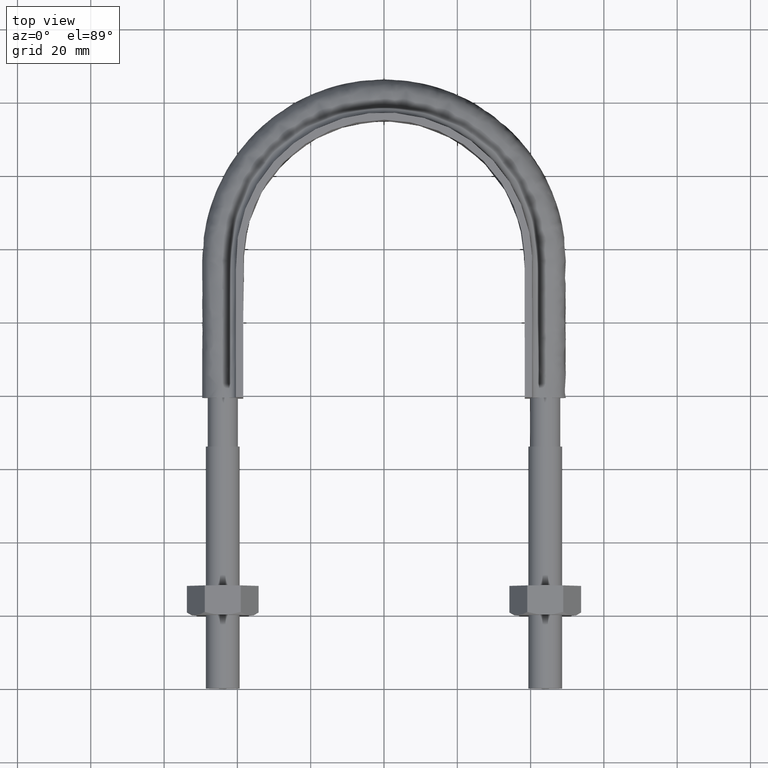
[diagram: clean part render]
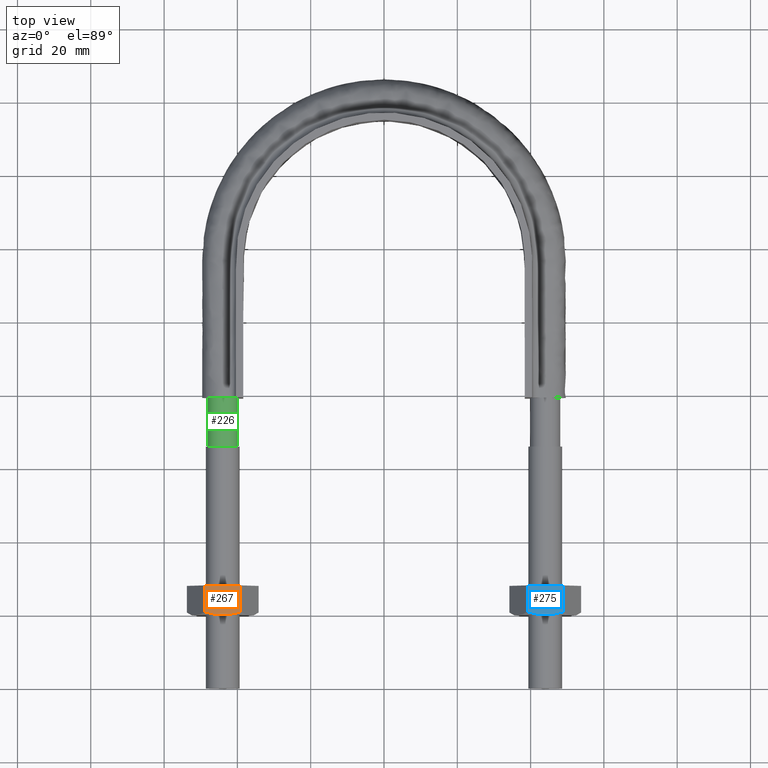
[diagram: same view with three faces highlighted in distinct colors, each labeled with its STEP entity id]
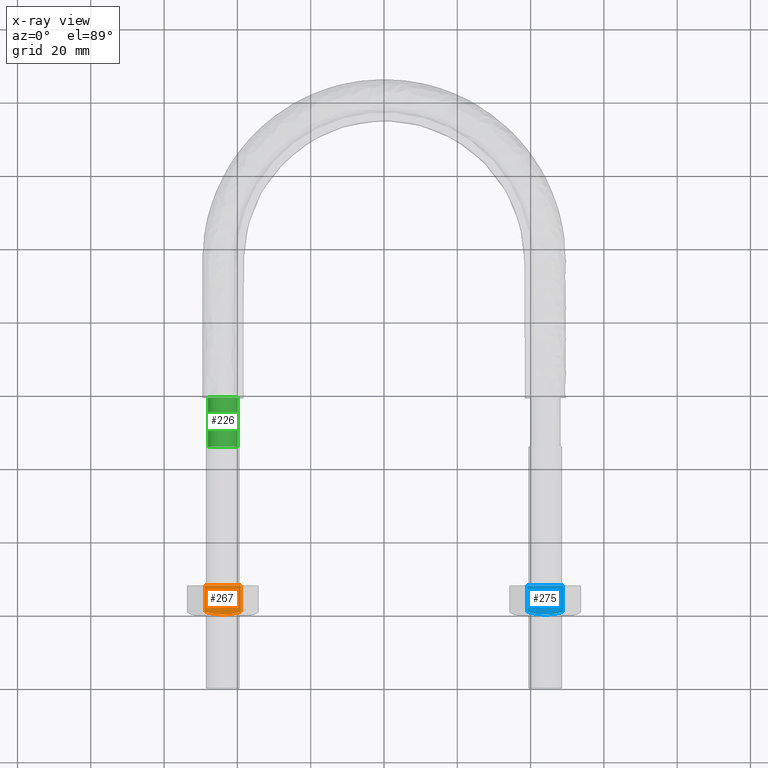
[diagram: x-ray of the same camera — body ghosted, the three highlighted faces saturated]
A machine part, top view with three faces highlighted in distinct colors.
The next image is the same camera in x-ray (body ghosted, the three faces saturated) — at least one of them is partly hidden behind the body in this view.
Their STEP definitions:

[orange] entity #267 — the highlighted planar face has unit normal (0, 0, -1).
#267 = ADVANCED_FACE( '', ( #406 ), #407, .F. );
#406 = FACE_OUTER_BOUND( '', #1403, .T. );
#407 = PLANE( '', #1404 );
#1403 = EDGE_LOOP( '', ( #1795, #1796, #1797, #1798, #1799 ) );
#1404 = AXIS2_PLACEMENT_3D( '', #1800, #1801, #1802 );
#1795 = ORIENTED_EDGE( '', *, *, #2058, .F. );
#1796 = ORIENTED_EDGE( '', *, *, #2091, .F. );
#1797 = ORIENTED_EDGE( '', *, *, #2098, .F. );
#1798 = ORIENTED_EDGE( '', *, *, #2078, .F. );
#1799 = ORIENTED_EDGE( '', *, *, #2065, .F. );
#1800 = CARTESIAN_POINT( '', ( -48.9074772881118, 28.0000000000000, 8.50000000000000 ) );
#1801 = DIRECTION( '', ( 5.55111512312578E-017, 6.12303176911189E-017, -1.00000000000000 ) );
#1802 = DIRECTION( '', ( -1.00000000000000, 0.000000000000000, -5.55111512312578E-017 ) );
#2058 = EDGE_CURVE( '', #2246, #2248, #2249, .T. );
#2065 = EDGE_CURVE( '', #2248, #2260, #2261, .T. );
#2078 = EDGE_CURVE( '', #2260, #2282, #2283, .T. );
#2091 = EDGE_CURVE( '', #2302, #2246, #2304, .T. );
#2098 = EDGE_CURVE( '', #2282, #2302, #2313, .F. );
#2246 = VERTEX_POINT( '', #2765 );
#2248 = VERTEX_POINT( '', #2767 );
#2249 = B_SPLINE_CURVE_WITH_KNOTS( '', 3, ( #2768, #2769, #2770, #2771, #2772, #2773 ), .UNSPECIFIED., .F., .F., ( 4, 2, 4 ), ( 0.000000000000000, 0.00246745482903606, 0.00493490965807212 ), .UNSPECIFIED. );
#2260 = VERTEX_POINT( '', #2797 );
#2261 = LINE( '', #2798, #2799 );
#2282 = VERTEX_POINT( '', #2831 );
#2283 = LINE( '', #2832, #2833 );
#2302 = VERTEX_POINT( '', #2870 );
#2304 = B_SPLINE_CURVE_WITH_KNOTS( '', 3, ( #2872, #2873, #2874, #2875, #2876, #2877 ), .UNSPECIFIED., .F., .F., ( 4, 2, 4 ), ( 6.93889390390723E-018, 0.00246745482903606, 0.00493490965807212 ), .UNSPECIFIED. );
#2313 = LINE( '', #2898, #2899 );
#2765 = CARTESIAN_POINT( '', ( -44.0000000000000, 20.0000000000000, 8.50000000000000 ) );
#2767 = CARTESIAN_POINT( '', ( -48.8774993593029, 20.7505553499465, 8.50000000000000 ) );
#2768 = CARTESIAN_POINT( '', ( -44.0000000000000, 20.0000000000000, 8.50000000000000 ) );
#2769 = CARTESIAN_POINT( '', ( -44.8321659501907, 20.0000000000000, 8.50000000000000 ) );
#2770 = CARTESIAN_POINT( '', ( -45.6533062476857, 20.0716504305290, 8.50000000000000 ) );
#2771 = CARTESIAN_POINT( '', ( -47.2774431756629, 20.3328582843707, 8.50000000000000 ) );
#2772 = CARTESIAN_POINT( '', ( -48.0805717066773, 20.5215585493657, 8.50000000000000 ) );
#2773 = CARTESIAN_POINT( '', ( -48.8774993593029, 20.7505553499465, 8.50000000000000 ) );
#2797 = CARTESIAN_POINT( '', ( -48.8774993593029, 28.0000000000000, 8.50000000000000 ) );
#2798 = CARTESIAN_POINT( '', ( -48.8774993593029, 28.0000000000000, 8.50000000000000 ) );
#2799 = VECTOR( '', #3157, 1000.00000000000 );
#2831 = CARTESIAN_POINT( '', ( -39.1225006406971, 28.0000000000000, 8.50000000000000 ) );
#2832 = CARTESIAN_POINT( '', ( -39.1000000000000, 28.0000000000000, 8.50000000000000 ) );
#2833 = VECTOR( '', #3179, 1000.00000000000 );
#2870 = CARTESIAN_POINT( '', ( -39.1225006406971, 20.7505553499465, 8.50000000000000 ) );
#2872 = CARTESIAN_POINT( '', ( -39.1225006406971, 20.7505553499465, 8.50000000000000 ) );
#2873 = CARTESIAN_POINT( '', ( -39.9194282933228, 20.5215585493657, 8.50000000000000 ) );
#2874 = CARTESIAN_POINT( '', ( -40.7225568243372, 20.3328582843707, 8.50000000000000 ) );
#2875 = CARTESIAN_POINT( '', ( -42.3466937523143, 20.0716504305290, 8.50000000000000 ) );
#2876 = CARTESIAN_POINT( '', ( -43.1678340498093, 20.0000000000000, 8.50000000000000 ) );
#2877 = CARTESIAN_POINT( '', ( -44.0000000000000, 20.0000000000000, 8.50000000000000 ) );
#2898 = CARTESIAN_POINT( '', ( -39.1225006406971, 28.0000000000000, 8.50000000000000 ) );
#2899 = VECTOR( '', #3209, 1000.00000000000 );
#3157 = DIRECTION( '', ( 2.44921270764475E-016, 1.00000000000000, 6.12303176911189E-017 ) );
#3179 = DIRECTION( '', ( 1.00000000000000, -2.44921270764475E-016, 5.55111512312578E-017 ) );
#3209 = DIRECTION( '', ( 2.44921270764475E-016, 1.00000000000000, 6.12303176911189E-017 ) );

[blue] entity #275 — the highlighted planar face has unit normal (0, 0, -1).
#275 = ADVANCED_FACE( '', ( #424 ), #425, .F. );
#424 = FACE_OUTER_BOUND( '', #1421, .T. );
#425 = PLANE( '', #1422 );
#1421 = EDGE_LOOP( '', ( #1849, #1850, #1851, #1852, #1853 ) );
#1422 = AXIS2_PLACEMENT_3D( '', #1854, #1855, #1856 );
#1849 = ORIENTED_EDGE( '', *, *, #2110, .F. );
#1850 = ORIENTED_EDGE( '', *, *, #2113, .F. );
#1851 = ORIENTED_EDGE( '', *, *, #2114, .F. );
#1852 = ORIENTED_EDGE( '', *, *, #2115, .F. );
#1853 = ORIENTED_EDGE( '', *, *, #2116, .F. );
#1854 = CARTESIAN_POINT( '', ( 39.0925227118882, 28.0000000000000, 8.50000000000000 ) );
#1855 = DIRECTION( '', ( 5.55111512312578E-017, 6.12303176911189E-017, -1.00000000000000 ) );
#1856 = DIRECTION( '', ( -1.00000000000000, 0.000000000000000, -5.55111512312578E-017 ) );
#2110 = EDGE_CURVE( '', #2332, #2334, #2335, .T. );
#2113 = EDGE_CURVE( '', #2339, #2332, #2340, .T. );
#2114 = EDGE_CURVE( '', #2341, #2339, #2342, .F. );
#2115 = EDGE_CURVE( '', #2343, #2341, #2344, .T. );
#2116 = EDGE_CURVE( '', #2334, #2343, #2345, .T. );
#2332 = VERTEX_POINT( '', #2929 );
#2334 = VERTEX_POINT( '', #2931 );
#2335 = B_SPLINE_CURVE_WITH_KNOTS( '', 3, ( #2932, #2933, #2934, #2935, #2936, #2937 ), .UNSPECIFIED., .F., .F., ( 4, 2, 4 ), ( 0.000000000000000, 0.00246745482903606, 0.00493490965807211 ), .UNSPECIFIED. );
#2339 = VERTEX_POINT( '', #2946 );
#2340 = B_SPLINE_CURVE_WITH_KNOTS( '', 3, ( #2947, #2948, #2949, #2950, #2951, #2952 ), .UNSPECIFIED., .F., .F., ( 4, 2, 4 ), ( 6.93889390390723E-018, 0.00246745482903607, 0.00493490965807212 ), .UNSPECIFIED. );
#2341 = VERTEX_POINT( '', #2953 );
#2342 = LINE( '', #2954, #2955 );
#2343 = VERTEX_POINT( '', #2956 );
#2344 = LINE( '', #2957, #2958 );
#2345 = LINE( '', #2959, #2960 );
#2929 = CARTESIAN_POINT( '', ( 44.0000000000000, 20.0000000000000, 8.50000000000000 ) );
#2931 = CARTESIAN_POINT( '', ( 39.1225006406971, 20.7505553499465, 8.50000000000000 ) );
#2932 = CARTESIAN_POINT( '', ( 44.0000000000000, 20.0000000000000, 8.50000000000000 ) );
#2933 = CARTESIAN_POINT( '', ( 43.1678340498093, 20.0000000000000, 8.50000000000000 ) );
#2934 = CARTESIAN_POINT( '', ( 42.3466937523143, 20.0716504305290, 8.50000000000000 ) );
#2935 = CARTESIAN_POINT( '', ( 40.7225568243371, 20.3328582843707, 8.50000000000000 ) );
#2936 = CARTESIAN_POINT( '', ( 39.9194282933227, 20.5215585493657, 8.50000000000000 ) );
#2937 = CARTESIAN_POINT( '', ( 39.1225006406971, 20.7505553499465, 8.50000000000000 ) );
#2946 = CARTESIAN_POINT( '', ( 48.8774993593029, 20.7505553499465, 8.50000000000000 ) );
#2947 = CARTESIAN_POINT( '', ( 48.8774993593029, 20.7505553499465, 8.50000000000000 ) );
#2948 = CARTESIAN_POINT( '', ( 48.0805717066773, 20.5215585493657, 8.50000000000000 ) );
#2949 = CARTESIAN_POINT( '', ( 47.2774431756629, 20.3328582843707, 8.50000000000000 ) );
#2950 = CARTESIAN_POINT( '', ( 45.6533062476857, 20.0716504305290, 8.50000000000000 ) );
#2951 = CARTESIAN_POINT( '', ( 44.8321659501907, 20.0000000000000, 8.50000000000000 ) );
#2952 = CARTESIAN_POINT( '', ( 44.0000000000000, 20.0000000000000, 8.50000000000000 ) );
#2953 = CARTESIAN_POINT( '', ( 48.8774993593029, 28.0000000000000, 8.50000000000000 ) );
#2954 = CARTESIAN_POINT( '', ( 48.8774993593029, 28.0000000000000, 8.50000000000000 ) );
#2955 = VECTOR( '', #3238, 1000.00000000000 );
#2956 = CARTESIAN_POINT( '', ( 39.1225006406971, 28.0000000000000, 8.50000000000000 ) );
#2957 = CARTESIAN_POINT( '', ( 48.9000000000000, 28.0000000000000, 8.50000000000000 ) );
#2958 = VECTOR( '', #3239, 1000.00000000000 );
#2959 = CARTESIAN_POINT( '', ( 39.1225006406971, 28.0000000000000, 8.50000000000000 ) );
#2960 = VECTOR( '', #3240, 1000.00000000000 );
#3238 = DIRECTION( '', ( 2.44921270764475E-016, 1.00000000000000, 6.12303176911189E-017 ) );
#3239 = DIRECTION( '', ( 1.00000000000000, -2.44921270764475E-016, 5.55111512312578E-017 ) );
#3240 = DIRECTION( '', ( 2.44921270764475E-016, 1.00000000000000, 6.12303176911189E-017 ) );

[green] entity #226 — the highlighted cylindrical surface (bore or boss wall) has radius 4.1 mm, axis along (0, 1, 0).
#226 = ADVANCED_FACE( '', ( #313, #314 ), #315, .T. );
#313 = FACE_OUTER_BOUND( '', #1161, .T. );
#314 = FACE_OUTER_BOUND( '', #1162, .T. );
#315 = CYLINDRICAL_SURFACE( '', #1163, 4.10000000000000 );
#1161 = EDGE_LOOP( '', ( #1523, #1524, #1525, #1526, #1527, #1528, #1529 ) );
#1162 = EDGE_LOOP( '', ( #1530 ) );
#1163 = AXIS2_PLACEMENT_3D( '', #1531, #1532, #1533 );
#1523 = ORIENTED_EDGE( '', *, *, #2017, .T. );
#1524 = ORIENTED_EDGE( '', *, *, #2018, .T. );
#1525 = ORIENTED_EDGE( '', *, *, #2019, .T. );
#1526 = ORIENTED_EDGE( '', *, *, #2020, .T. );
#1527 = ORIENTED_EDGE( '', *, *, #2021, .T. );
#1528 = ORIENTED_EDGE( '', *, *, #2022, .T. );
#1529 = ORIENTED_EDGE( '', *, *, #2023, .T. );
#1530 = ORIENTED_EDGE( '', *, *, #2024, .T. );
#1531 = CARTESIAN_POINT( '', ( -44.0000000000000, 79.3000000000000, 2.34512116756985E-015 ) );
#1532 = DIRECTION( '', ( 2.44921270764475E-016, 1.00000000000000, 6.12303176911189E-017 ) );
#1533 = DIRECTION( '', ( 1.00000000000000, -2.44921270764475E-016, -7.49830360911069E-033 ) );
#2017 = EDGE_CURVE( '', #2179, #2180, #2181, .T. );
#2018 = EDGE_CURVE( '', #2180, #2182, #2183, .T. );
#2019 = EDGE_CURVE( '', #2182, #2184, #2185, .T. );
#2020 = EDGE_CURVE( '', #2184, #2186, #2187, .T. );
#2021 = EDGE_CURVE( '', #2186, #2188, #2189, .T. );
#2022 = EDGE_CURVE( '', #2188, #2190, #2191, .T. );
#2023 = EDGE_CURVE( '', #2190, #2179, #2192, .T. );
#2024 = EDGE_CURVE( '', #2193, #2193, #2194, .T. );
#2179 = VERTEX_POINT( '', #2646 );
#2180 = VERTEX_POINT( '', #2647 );
#2181 = CIRCLE( '', #2648, 4.10000000000000 );
#2182 = VERTEX_POINT( '', #2649 );
#2183 = CIRCLE( '', #2650, 4.10000000000000 );
#2184 = VERTEX_POINT( '', #2651 );
#2185 = CIRCLE( '', #2652, 4.10000000000000 );
#2186 = VERTEX_POINT( '', #2653 );
#2187 = CIRCLE( '', #2654, 4.10000000000000 );
#2188 = VERTEX_POINT( '', #2655 );
#2189 = CIRCLE( '', #2656, 4.10000000000000 );
#2190 = VERTEX_POINT( '', #2657 );
#2191 = CIRCLE( '', #2658, 4.10000000000000 );
#2192 = CIRCLE( '', #2659, 4.10000000000000 );
#2193 = VERTEX_POINT( '', #2660 );
#2194 = CIRCLE( '', #2661, 4.10000000000000 );
#2646 = CARTESIAN_POINT( '', ( -39.9000000000000, 79.3000000000000, 5.26458725159965E-014 ) );
#2647 = CARTESIAN_POINT( '', ( -41.4436918124017, 79.3000000000000, 3.20550907813692 ) );
#2648 = AXIS2_PLACEMENT_3D( '', #3076, #3077, #3078 );
#2649 = CARTESIAN_POINT( '', ( -44.9123358292510, 79.3000000000000, 3.99720443993860 ) );
#2650 = AXIS2_PLACEMENT_3D( '', #3079, #3080, #3081 );
#2651 = CARTESIAN_POINT( '', ( -47.6939723583999, 79.3000000000000, 1.77892333038206 ) );
#2652 = AXIS2_PLACEMENT_3D( '', #3082, #3083, #3084 );
#2653 = CARTESIAN_POINT( '', ( -47.6939723583999, 79.3000000000000, -1.77892333038199 ) );
#2654 = AXIS2_PLACEMENT_3D( '', #3085, #3086, #3087 );
#2655 = CARTESIAN_POINT( '', ( -44.9123358292208, 79.3000000000000, -3.99720443994549 ) );
#2656 = AXIS2_PLACEMENT_3D( '', #3088, #3089, #3090 );
#2657 = CARTESIAN_POINT( '', ( -41.4436918123794, 79.3000000000000, -3.20550907811908 ) );
#2658 = AXIS2_PLACEMENT_3D( '', #3091, #3092, #3093 );
#2659 = AXIS2_PLACEMENT_3D( '', #3094, #3095, #3096 );
#2660 = CARTESIAN_POINT( '', ( -39.9000000000000, 66.0000000000000, 1.53075794227797E-015 ) );
#2661 = AXIS2_PLACEMENT_3D( '', #3097, #3098, #3099 );
#3076 = CARTESIAN_POINT( '', ( -44.0000000000000, 79.3000000000000, 2.34512116756985E-015 ) );
#3077 = DIRECTION( '', ( -2.44921270764475E-016, -1.00000000000000, -6.12303176911189E-017 ) );
#3078 = DIRECTION( '', ( 1.00000000000000, -2.44921270764475E-016, -1.04341724267742E-032 ) );
#3079 = CARTESIAN_POINT( '', ( -44.0000000000000, 79.3000000000000, 2.34512116756985E-015 ) );
#3080 = DIRECTION( '', ( -2.44921270764475E-016, -1.00000000000000, -6.12303176911189E-017 ) );
#3081 = DIRECTION( '', ( 1.00000000000000, -2.44921270764475E-016, -1.04341724267742E-032 ) );
#3082 = CARTESIAN_POINT( '', ( -44.0000000000000, 79.3000000000000, 2.34512116756985E-015 ) );
#3083 = DIRECTION( '', ( -2.44921270764475E-016, -1.00000000000000, -6.12303176911189E-017 ) );
#3084 = DIRECTION( '', ( 1.00000000000000, -2.44921270764475E-016, -1.04341724267742E-032 ) );
#3085 = CARTESIAN_POINT( '', ( -44.0000000000000, 79.3000000000000, 2.34512116756985E-015 ) );
#3086 = DIRECTION( '', ( -2.44921270764475E-016, -1.00000000000000, -6.12303176911189E-017 ) );
#3087 = DIRECTION( '', ( 1.00000000000000, -2.44921270764475E-016, -1.04341724267742E-032 ) );
#3088 = CARTESIAN_POINT( '', ( -44.0000000000000, 79.3000000000000, 2.34512116756985E-015 ) );
#3089 = DIRECTION( '', ( -2.44921270764475E-016, -1.00000000000000, -6.12303176911189E-017 ) );
#3090 = DIRECTION( '', ( 1.00000000000000, -2.44921270764475E-016, -1.04341724267742E-032 ) );
#3091 = CARTESIAN_POINT( '', ( -44.0000000000000, 79.3000000000000, 2.34512116756985E-015 ) );
#3092 = DIRECTION( '', ( -2.44921270764475E-016, -1.00000000000000, -6.12303176911189E-017 ) );
#3093 = DIRECTION( '', ( 1.00000000000000, -2.44921270764475E-016, -1.04341724267742E-032 ) );
#3094 = CARTESIAN_POINT( '', ( -44.0000000000000, 79.3000000000000, 2.34512116756985E-015 ) );
#3095 = DIRECTION( '', ( -2.44921270764475E-016, -1.00000000000000, -6.12303176911189E-017 ) );
#3096 = DIRECTION( '', ( 1.00000000000000, -2.44921270764475E-016, -1.04341724267742E-032 ) );
#3097 = CARTESIAN_POINT( '', ( -44.0000000000000, 66.0000000000000, 1.53075794227797E-015 ) );
#3098 = DIRECTION( '', ( 2.44921270764476E-016, 1.00000000000000, 6.12303176911189E-017 ) );
#3099 = DIRECTION( '', ( 1.00000000000000, -2.44921270764476E-016, 0.000000000000000 ) );